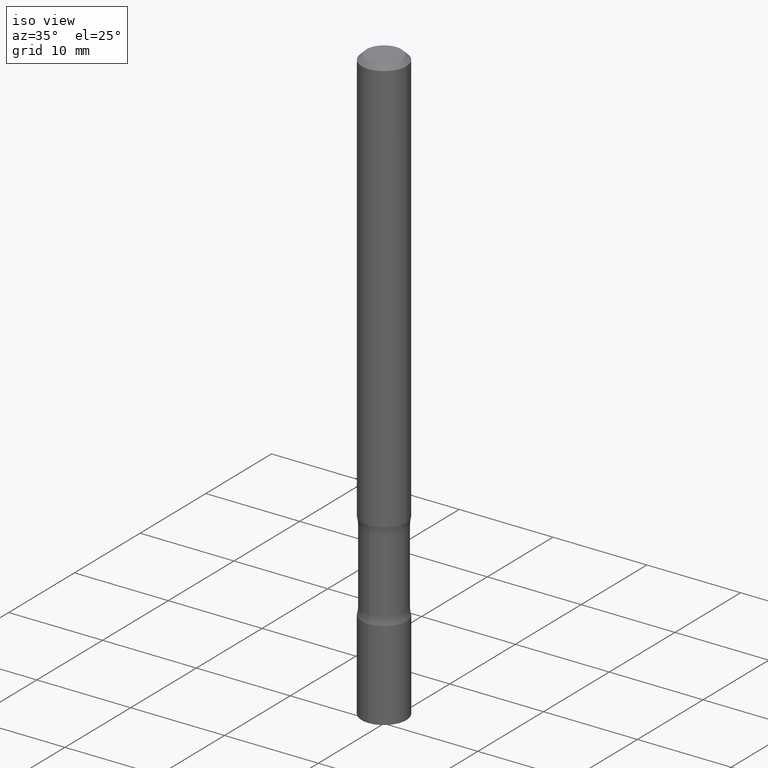
[diagram: clean part render]
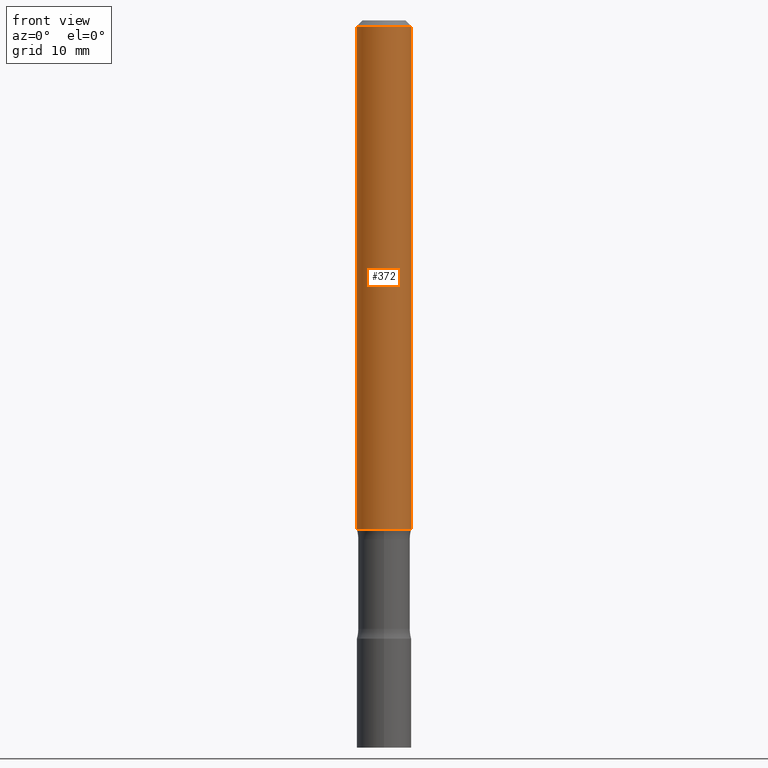
[diagram: tour spotlight — one face highlighted and labeled with its STEP entity id]
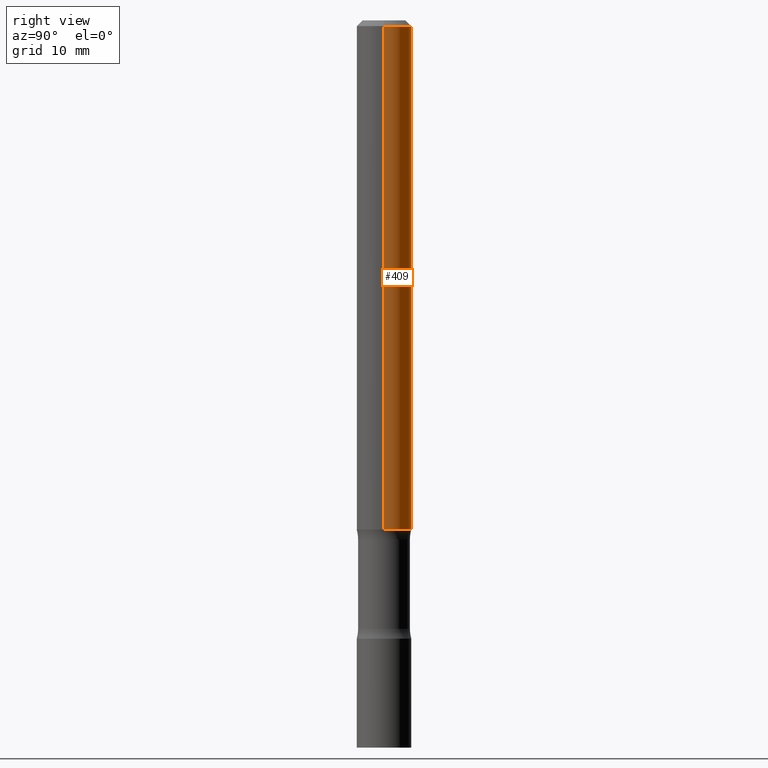
[diagram: tour spotlight — one face highlighted and labeled with its STEP entity id]
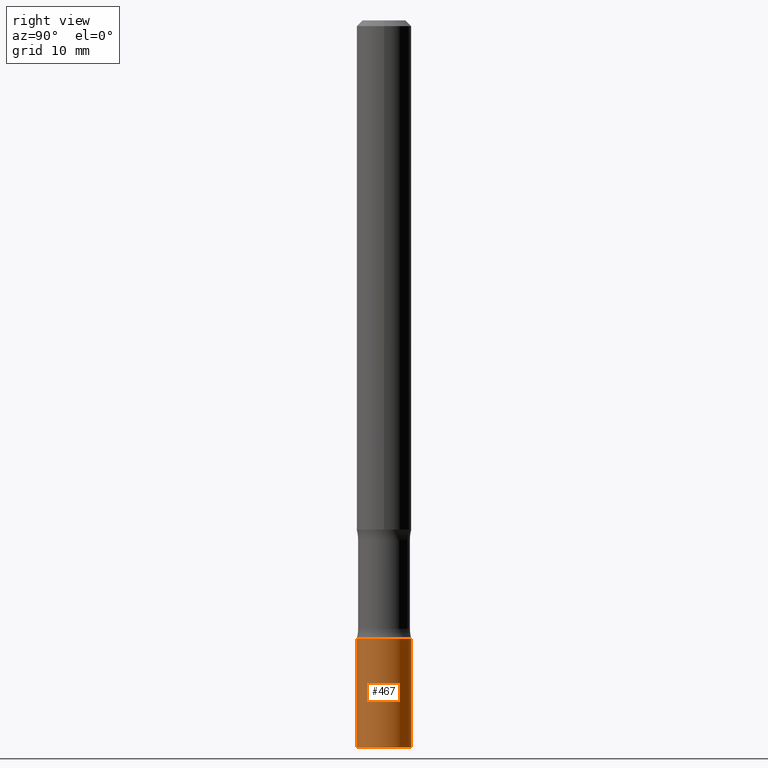
[diagram: tour spotlight — one face highlighted and labeled with its STEP entity id]
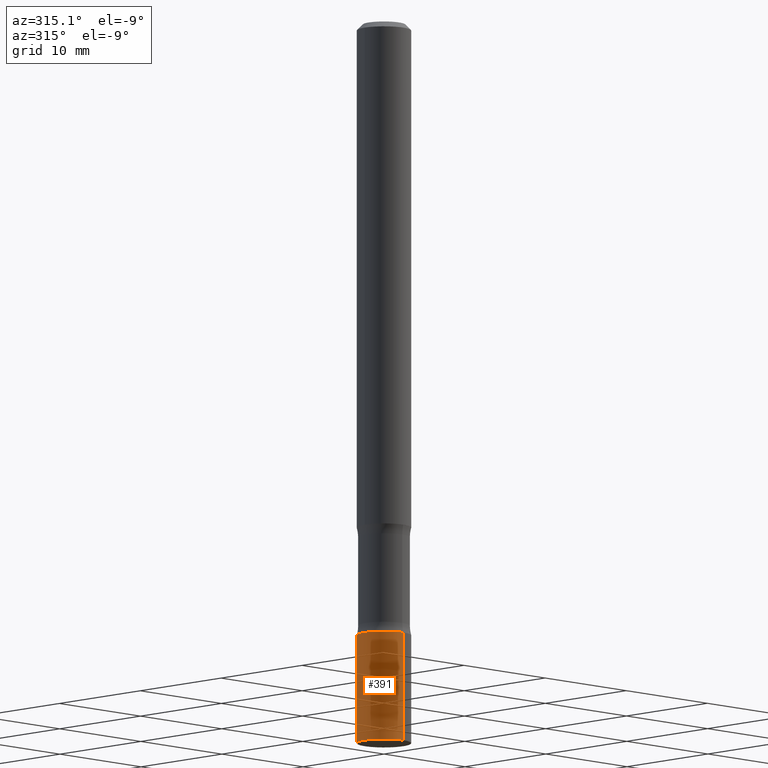
[diagram: tour spotlight — one face highlighted and labeled with its STEP entity id]
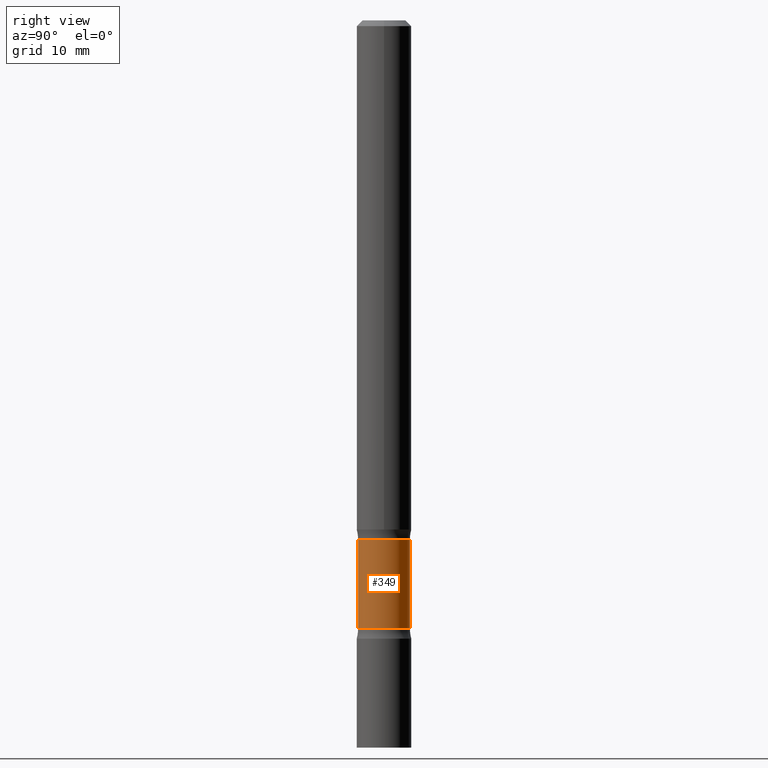
[diagram: tour spotlight — one face highlighted and labeled with its STEP entity id]
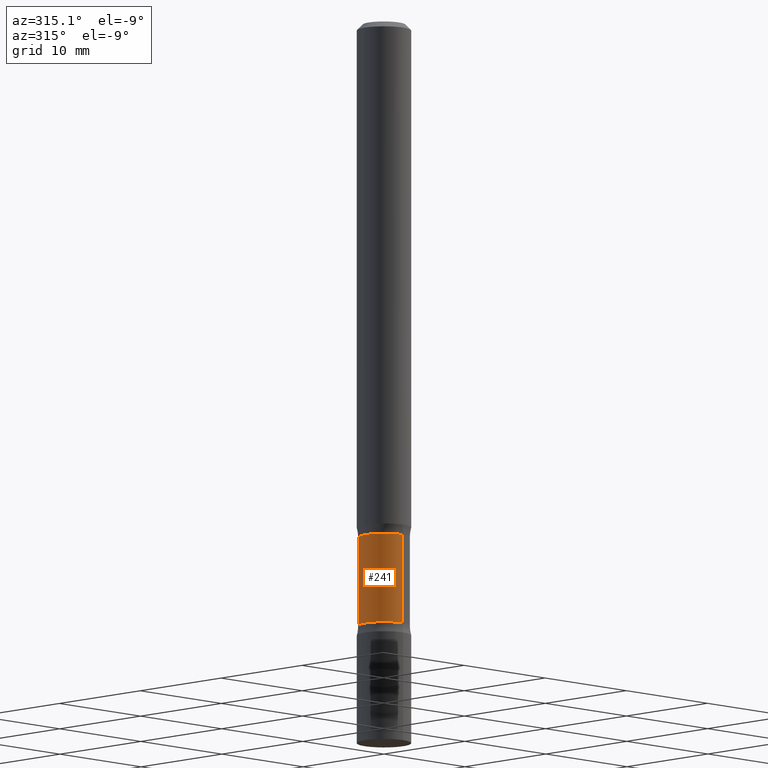
[diagram: tour spotlight — one face highlighted and labeled with its STEP entity id]
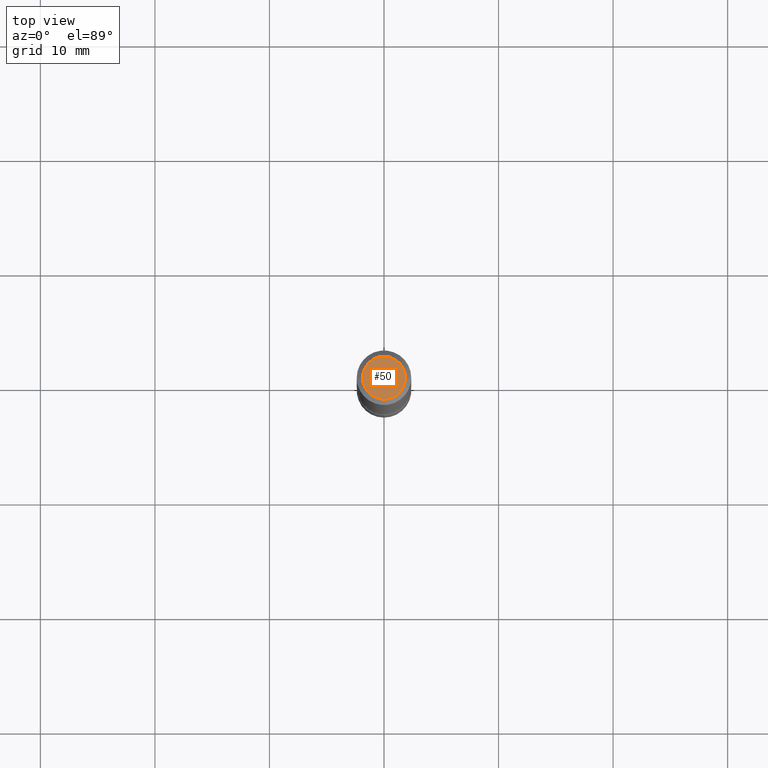
[diagram: tour spotlight — one face highlighted and labeled with its STEP entity id]
A machine part: a face-by-face anatomy tour. The part has 18 B-rep faces; the first image is the clean iso view, then the 7 largest visible faces are spotlighted one at a time (largest first), each with its STEP entity span.

Face 1 — front view, entity #372. In plain terms, the highlighted cylindrical surface (edge-blend (fillet) strip) has radius 2.3812 mm, axis along (-0, 0, 1).
Definition (entity closure, byte-faithful):
#12 = VERTEX_POINT ( 'NONE', #350 ) ;
#14 = AXIS2_PLACEMENT_3D ( 'NONE', #357, #317, #170 ) ;
#22 = CIRCLE ( 'NONE', #334, 0.09375000000000001388 ) ;
#25 = ORIENTED_EDGE ( 'NONE', *, *, #125, .F. ) ;
#30 = VERTEX_POINT ( 'NONE', #498 ) ;
#34 = DIRECTION ( 'NONE',  ( 1.000000000000000000, -6.982962677686261189E-15, 0.000000000000000000 ) ) ;
#48 = AXIS2_PLACEMENT_3D ( 'NONE', #128, #421, #66 ) ;
#66 = DIRECTION ( 'NONE',  ( 1.000000000000000000, -6.982962677686266711E-15, 0.000000000000000000 ) ) ;
#69 = VERTEX_POINT ( 'NONE', #406 ) ;
#90 = EDGE_CURVE ( 'NONE', #343, #30, #225, .T. ) ;
#100 = CIRCLE ( 'NONE', #48, 0.09374999999999979183 ) ;
#112 = CARTESIAN_POINT ( 'NONE',  ( 4.279570410823988484E-29, -6.110092342975504671E-15, -1.750000000000000000 ) ) ;
#114 = DIRECTION ( 'NONE',  ( -2.445468806185136597E-29, 3.491481338843145583E-15, 1.000000000000000000 ) ) ;
#121 = ORIENTED_EDGE ( 'NONE', *, *, #90, .F. ) ;
#123 = EDGE_LOOP ( 'NONE', ( #121, #459, #268, #25 ) ) ;
#125 = EDGE_CURVE ( 'NONE', #30, #12, #100, .T. ) ;
#128 = CARTESIAN_POINT ( 'NONE',  ( 4.890937612370273159E-31, -6.982962677686291609E-17, -0.02000000000000000042 ) ) ;
#143 = EDGE_CURVE ( 'NONE', #343, #69, #22, .T. ) ;
#144 = CARTESIAN_POINT ( 'NONE',  ( 0.09374999999999988898, -6.546527510330866166E-16, 4.571415727308684201E-30 ) ) ;
#170 = DIRECTION ( 'NONE',  ( 1.000000000000000000, -6.982962677686265133E-15, 4.876176775795935793E-29 ) ) ;
#178 = LINE ( 'NONE', #144, #436 ) ;
#193 = DIRECTION ( 'NONE',  ( -2.445468806185136877E-29, 3.491481338843145188E-15, 1.000000000000000000 ) ) ;
#212 = VECTOR ( 'NONE', #193, 39.37007874015748143 ) ;
#225 = LINE ( 'NONE', #493, #212 ) ;
#233 = CYLINDRICAL_SURFACE ( 'NONE', #14, 0.09374999999999988898 ) ;
#242 = CARTESIAN_POINT ( 'NONE',  ( -0.09375000000000001388, -2.423827170101085722E-15, -1.750000000000000000 ) ) ;
#268 = ORIENTED_EDGE ( 'NONE', *, *, #341, .T. ) ;
#285 = FACE_OUTER_BOUND ( 'NONE', #123, .T. ) ;
#317 = DIRECTION ( 'NONE',  ( -2.445468806185136597E-29, 3.491481338843145583E-15, 1.000000000000000000 ) ) ;
#334 = AXIS2_PLACEMENT_3D ( 'NONE', #112, #114, #34 ) ;
#341 = EDGE_CURVE ( 'NONE', #69, #12, #178, .T. ) ;
#343 = VERTEX_POINT ( 'NONE', #242 ) ;
#350 = CARTESIAN_POINT ( 'NONE',  ( 0.09374999999999979183, -7.130013140679426072E-16, -0.02000000000000000042 ) ) ;
#357 = CARTESIAN_POINT ( 'NONE',  ( 0.000000000000000000, 0.000000000000000000, 0.000000000000000000 ) ) ;
#372 = ADVANCED_FACE ( 'NONE', ( #285 ), #233, .T. ) ;
#406 = CARTESIAN_POINT ( 'NONE',  ( 0.09375000000000001388, -6.764745094008591386E-15, -1.750000000000000000 ) ) ;
#421 = DIRECTION ( 'NONE',  ( -2.445468806185136597E-29, 3.491481338843145583E-15, 1.000000000000000000 ) ) ;
#436 = VECTOR ( 'NONE', #477, 39.37007874015748143 ) ;
#459 = ORIENTED_EDGE ( 'NONE', *, *, #143, .T. ) ;
#477 = DIRECTION ( 'NONE',  ( -2.445468806185136877E-29, 3.491481338843145188E-15, 1.000000000000000000 ) ) ;
#493 = CARTESIAN_POINT ( 'NONE',  ( -0.09374999999999988898, 6.661338147750931354E-16, -4.611501647113968390E-30 ) ) ;
#498 = CARTESIAN_POINT ( 'NONE',  ( -0.09374999999999979183, 5.848231242562231212E-16, -0.02000000000000000042 ) ) ;

Face 2 — right view, entity #409. In plain terms, the highlighted cylindrical surface (edge-blend (fillet) strip) has radius 2.3812 mm, axis along (-0, 0, 1).
Definition (entity closure, byte-faithful):
#12 = VERTEX_POINT ( 'NONE', #350 ) ;
#26 = ORIENTED_EDGE ( 'NONE', *, *, #286, .T. ) ;
#30 = VERTEX_POINT ( 'NONE', #498 ) ;
#47 = CARTESIAN_POINT ( 'NONE',  ( 0.000000000000000000, 0.000000000000000000, 0.000000000000000000 ) ) ;
#61 = AXIS2_PLACEMENT_3D ( 'NONE', #47, #213, #129 ) ;
#69 = VERTEX_POINT ( 'NONE', #406 ) ;
#86 = CIRCLE ( 'NONE', #181, 0.09375000000000001388 ) ;
#90 = EDGE_CURVE ( 'NONE', #343, #30, #225, .T. ) ;
#127 = EDGE_LOOP ( 'NONE', ( #26, #224, #166, #261 ) ) ;
#129 = DIRECTION ( 'NONE',  ( 1.000000000000000000, -6.982962677686265133E-15, 4.876176775795935793E-29 ) ) ;
#136 = EDGE_CURVE ( 'NONE', #12, #30, #379, .T. ) ;
#144 = CARTESIAN_POINT ( 'NONE',  ( 0.09374999999999988898, -6.546527510330866166E-16, 4.571415727308684201E-30 ) ) ;
#161 = CARTESIAN_POINT ( 'NONE',  ( 4.890937612370273159E-31, -6.982962677686291609E-17, -0.02000000000000000042 ) ) ;
#166 = ORIENTED_EDGE ( 'NONE', *, *, #136, .F. ) ;
#178 = LINE ( 'NONE', #144, #436 ) ;
#181 = AXIS2_PLACEMENT_3D ( 'NONE', #215, #289, #365 ) ;
#193 = DIRECTION ( 'NONE',  ( -2.445468806185136877E-29, 3.491481338843145188E-15, 1.000000000000000000 ) ) ;
#212 = VECTOR ( 'NONE', #193, 39.37007874015748143 ) ;
#213 = DIRECTION ( 'NONE',  ( -2.445468806185136597E-29, 3.491481338843145583E-15, 1.000000000000000000 ) ) ;
#215 = CARTESIAN_POINT ( 'NONE',  ( 4.279570410823988484E-29, -6.110092342975504671E-15, -1.750000000000000000 ) ) ;
#224 = ORIENTED_EDGE ( 'NONE', *, *, #90, .T. ) ;
#225 = LINE ( 'NONE', #493, #212 ) ;
#242 = CARTESIAN_POINT ( 'NONE',  ( -0.09375000000000001388, -2.423827170101085722E-15, -1.750000000000000000 ) ) ;
#247 = FACE_OUTER_BOUND ( 'NONE', #127, .T. ) ;
#261 = ORIENTED_EDGE ( 'NONE', *, *, #341, .F. ) ;
#286 = EDGE_CURVE ( 'NONE', #69, #343, #86, .T. ) ;
#289 = DIRECTION ( 'NONE',  ( -2.445468806185136597E-29, 3.491481338843145583E-15, 1.000000000000000000 ) ) ;
#341 = EDGE_CURVE ( 'NONE', #69, #12, #178, .T. ) ;
#343 = VERTEX_POINT ( 'NONE', #242 ) ;
#344 = DIRECTION ( 'NONE',  ( -2.445468806185136597E-29, 3.491481338843145583E-15, 1.000000000000000000 ) ) ;
#350 = CARTESIAN_POINT ( 'NONE',  ( 0.09374999999999979183, -7.130013140679426072E-16, -0.02000000000000000042 ) ) ;
#365 = DIRECTION ( 'NONE',  ( 1.000000000000000000, -6.982962677686261189E-15, 0.000000000000000000 ) ) ;
#379 = CIRCLE ( 'NONE', #507, 0.09374999999999979183 ) ;
#389 = DIRECTION ( 'NONE',  ( 1.000000000000000000, -6.982962677686266711E-15, 0.000000000000000000 ) ) ;
#396 = CYLINDRICAL_SURFACE ( 'NONE', #61, 0.09374999999999988898 ) ;
#406 = CARTESIAN_POINT ( 'NONE',  ( 0.09375000000000001388, -6.764745094008591386E-15, -1.750000000000000000 ) ) ;
#409 = ADVANCED_FACE ( 'NONE', ( #247 ), #396, .T. ) ;
#436 = VECTOR ( 'NONE', #477, 39.37007874015748143 ) ;
#477 = DIRECTION ( 'NONE',  ( -2.445468806185136877E-29, 3.491481338843145188E-15, 1.000000000000000000 ) ) ;
#493 = CARTESIAN_POINT ( 'NONE',  ( -0.09374999999999988898, 6.661338147750931354E-16, -4.611501647113968390E-30 ) ) ;
#498 = CARTESIAN_POINT ( 'NONE',  ( -0.09374999999999979183, 5.848231242562231212E-16, -0.02000000000000000042 ) ) ;
#507 = AXIS2_PLACEMENT_3D ( 'NONE', #161, #344, #389 ) ;

Face 3 — right view, entity #467. In plain terms, the highlighted cylindrical surface (edge-blend (fillet) strip) has radius 2.3813 mm, axis along (-0, 0, 1).
Definition (entity closure, byte-faithful):
#11 = CARTESIAN_POINT ( 'NONE',  ( -6.546527510330356365E-16, -0.09375000000000743849, -2.125000000000000000 ) ) ;
#32 = DIRECTION ( 'NONE',  ( -6.982962677686265922E-15, -1.000000000000000000, 2.913971193241880372E-15 ) ) ;
#40 = EDGE_LOOP ( 'NONE', ( #301, #191, #342, #369 ) ) ;
#60 = CARTESIAN_POINT ( 'NONE',  ( 0.000000000000000000, 0.000000000000000000, 0.000000000000000000 ) ) ;
#64 = DIRECTION ( 'NONE',  ( -2.445335353247201709E-29, 3.491672451045937805E-15, 1.000000000000000000 ) ) ;
#74 = VERTEX_POINT ( 'NONE', #484 ) ;
#82 = AXIS2_PLACEMENT_3D ( 'NONE', #60, #64, #376 ) ;
#89 = CARTESIAN_POINT ( 'NONE',  ( 5.196337625650303527E-29, -7.419803958472619019E-15, -2.125000000000000000 ) ) ;
#107 = EDGE_CURVE ( 'NONE', #159, #74, #271, .T. ) ;
#154 = EDGE_CURVE ( 'NONE', #159, #428, #231, .T. ) ;
#155 = CARTESIAN_POINT ( 'NONE',  ( -6.546527510330875041E-16, -0.09375000000000001388, 3.273442922855567185E-16 ) ) ;
#158 = CARTESIAN_POINT ( 'NONE',  ( 6.113338383118004413E-29, -8.729181127614846091E-15, -2.500000000000000000 ) ) ;
#159 = VERTEX_POINT ( 'NONE', #237 ) ;
#191 = ORIENTED_EDGE ( 'NONE', *, *, #205, .T. ) ;
#205 = EDGE_CURVE ( 'NONE', #74, #230, #206, .T. ) ;
#206 = LINE ( 'NONE', #232, #292 ) ;
#230 = VERTEX_POINT ( 'NONE', #473 ) ;
#231 = LINE ( 'NONE', #155, #360 ) ;
#232 = CARTESIAN_POINT ( 'NONE',  ( 6.661338147750938256E-16, 0.09375000000000001388, -3.273442922855567185E-16 ) ) ;
#237 = CARTESIAN_POINT ( 'NONE',  ( -6.546527510330263674E-16, -0.09375000000000872913, -2.499999999999999556 ) ) ;
#255 = AXIS2_PLACEMENT_3D ( 'NONE', #158, #429, #303 ) ;
#264 = FACE_OUTER_BOUND ( 'NONE', #40, .T. ) ;
#271 = CIRCLE ( 'NONE', #255, 0.09375000000000001388 ) ;
#292 = VECTOR ( 'NONE', #313, 39.37007874015748143 ) ;
#301 = ORIENTED_EDGE ( 'NONE', *, *, #107, .T. ) ;
#303 = DIRECTION ( 'NONE',  ( -6.982962677686265922E-15, -1.000000000000000000, 5.827942386483760744E-15 ) ) ;
#313 = DIRECTION ( 'NONE',  ( -2.445335353247201709E-29, 3.491672451045938200E-15, 1.000000000000000000 ) ) ;
#342 = ORIENTED_EDGE ( 'NONE', *, *, #394, .F. ) ;
#354 = DIRECTION ( 'NONE',  ( -2.445335353247201709E-29, 3.491672451045937805E-15, 1.000000000000000000 ) ) ;
#360 = VECTOR ( 'NONE', #462, 39.37007874015748143 ) ;
#369 = ORIENTED_EDGE ( 'NONE', *, *, #154, .F. ) ;
#376 = DIRECTION ( 'NONE',  ( -6.982962677686265922E-15, -1.000000000000000000, 3.491672451045937805E-15 ) ) ;
#394 = EDGE_CURVE ( 'NONE', #428, #230, #497, .T. ) ;
#416 = CYLINDRICAL_SURFACE ( 'NONE', #82, 0.09375000000000001388 ) ;
#428 = VERTEX_POINT ( 'NONE', #11 ) ;
#429 = DIRECTION ( 'NONE',  ( -2.445335353247201709E-29, 3.491672451045937805E-15, 1.000000000000000000 ) ) ;
#462 = DIRECTION ( 'NONE',  ( -2.445335353247201709E-29, 3.491672451045938200E-15, 1.000000000000000000 ) ) ;
#467 = ADVANCED_FACE ( 'NONE', ( #264 ), #416, .T. ) ;
#473 = CARTESIAN_POINT ( 'NONE',  ( 6.661338147751549624E-16, 0.09374999999999257538, -2.125000000000000444 ) ) ;
#478 = AXIS2_PLACEMENT_3D ( 'NONE', #89, #354, #32 ) ;
#484 = CARTESIAN_POINT ( 'NONE',  ( 6.661338147751504264E-16, 0.09374999999999128475, -2.500000000000000444 ) ) ;
#497 = CIRCLE ( 'NONE', #478, 0.09375000000000001388 ) ;

Face 4 — auxiliary view, entity #391. In plain terms, the highlighted cylindrical surface (edge-blend (fillet) strip) has radius 2.3813 mm, axis along (-0, 0, 1).
Definition (entity closure, byte-faithful):
#11 = CARTESIAN_POINT ( 'NONE',  ( -6.546527510330356365E-16, -0.09375000000000743849, -2.125000000000000000 ) ) ;
#42 = DIRECTION ( 'NONE',  ( -2.445335353247201709E-29, 3.491672451045937805E-15, 1.000000000000000000 ) ) ;
#46 = AXIS2_PLACEMENT_3D ( 'NONE', #302, #337, #149 ) ;
#58 = AXIS2_PLACEMENT_3D ( 'NONE', #207, #42, #175 ) ;
#74 = VERTEX_POINT ( 'NONE', #484 ) ;
#135 = FACE_OUTER_BOUND ( 'NONE', #384, .T. ) ;
#137 = CYLINDRICAL_SURFACE ( 'NONE', #165, 0.09375000000000001388 ) ;
#149 = DIRECTION ( 'NONE',  ( -6.982962677686265922E-15, -1.000000000000000000, 2.913971193241880372E-15 ) ) ;
#154 = EDGE_CURVE ( 'NONE', #159, #428, #231, .T. ) ;
#155 = CARTESIAN_POINT ( 'NONE',  ( -6.546527510330875041E-16, -0.09375000000000001388, 3.273442922855567185E-16 ) ) ;
#159 = VERTEX_POINT ( 'NONE', #237 ) ;
#165 = AXIS2_PLACEMENT_3D ( 'NONE', #386, #284, #439 ) ;
#175 = DIRECTION ( 'NONE',  ( -6.982962677686265922E-15, -1.000000000000000000, 5.827942386483760744E-15 ) ) ;
#205 = EDGE_CURVE ( 'NONE', #74, #230, #206, .T. ) ;
#206 = LINE ( 'NONE', #232, #292 ) ;
#207 = CARTESIAN_POINT ( 'NONE',  ( 6.113338383118004413E-29, -8.729181127614846091E-15, -2.500000000000000000 ) ) ;
#230 = VERTEX_POINT ( 'NONE', #473 ) ;
#231 = LINE ( 'NONE', #155, #360 ) ;
#232 = CARTESIAN_POINT ( 'NONE',  ( 6.661338147750938256E-16, 0.09375000000000001388, -3.273442922855567185E-16 ) ) ;
#237 = CARTESIAN_POINT ( 'NONE',  ( -6.546527510330263674E-16, -0.09375000000000872913, -2.499999999999999556 ) ) ;
#262 = CIRCLE ( 'NONE', #46, 0.09375000000000001388 ) ;
#284 = DIRECTION ( 'NONE',  ( -2.445335353247201709E-29, 3.491672451045937805E-15, 1.000000000000000000 ) ) ;
#292 = VECTOR ( 'NONE', #313, 39.37007874015748143 ) ;
#302 = CARTESIAN_POINT ( 'NONE',  ( 5.196337625650303527E-29, -7.419803958472619019E-15, -2.125000000000000000 ) ) ;
#313 = DIRECTION ( 'NONE',  ( -2.445335353247201709E-29, 3.491672451045938200E-15, 1.000000000000000000 ) ) ;
#336 = ORIENTED_EDGE ( 'NONE', *, *, #205, .F. ) ;
#337 = DIRECTION ( 'NONE',  ( -2.445335353247201709E-29, 3.491672451045937805E-15, 1.000000000000000000 ) ) ;
#360 = VECTOR ( 'NONE', #462, 39.37007874015748143 ) ;
#364 = EDGE_CURVE ( 'NONE', #74, #159, #377, .T. ) ;
#377 = CIRCLE ( 'NONE', #58, 0.09375000000000001388 ) ;
#381 = ORIENTED_EDGE ( 'NONE', *, *, #364, .T. ) ;
#384 = EDGE_LOOP ( 'NONE', ( #336, #381, #487, #495 ) ) ;
#386 = CARTESIAN_POINT ( 'NONE',  ( 0.000000000000000000, 0.000000000000000000, 0.000000000000000000 ) ) ;
#391 = ADVANCED_FACE ( 'NONE', ( #135 ), #137, .T. ) ;
#428 = VERTEX_POINT ( 'NONE', #11 ) ;
#439 = DIRECTION ( 'NONE',  ( -6.982962677686265922E-15, -1.000000000000000000, 3.491672451045937805E-15 ) ) ;
#445 = EDGE_CURVE ( 'NONE', #230, #428, #262, .T. ) ;
#462 = DIRECTION ( 'NONE',  ( -2.445335353247201709E-29, 3.491672451045938200E-15, 1.000000000000000000 ) ) ;
#473 = CARTESIAN_POINT ( 'NONE',  ( 6.661338147751549624E-16, 0.09374999999999257538, -2.125000000000000444 ) ) ;
#484 = CARTESIAN_POINT ( 'NONE',  ( 6.661338147751504264E-16, 0.09374999999999128475, -2.500000000000000444 ) ) ;
#487 = ORIENTED_EDGE ( 'NONE', *, *, #154, .T. ) ;
#495 = ORIENTED_EDGE ( 'NONE', *, *, #445, .F. ) ;

Face 5 — right view, entity #349. In plain terms, the highlighted cylindrical surface (edge-blend (fillet) strip) has radius 2.2622 mm, axis along (0, -0, -1).
Definition (entity closure, byte-faithful):
#10 = CARTESIAN_POINT ( 'NONE',  ( 5.108949665098794430E-29, -7.307796357737152502E-15, -2.091089789977795821 ) ) ;
#20 = ORIENTED_EDGE ( 'NONE', *, *, #483, .T. ) ;
#35 = DIRECTION ( 'NONE',  ( 2.577039791092079409E-29, -3.303064199901000429E-15, -1.000000000000000000 ) ) ;
#39 = FACE_OUTER_BOUND ( 'NONE', #299, .T. ) ;
#103 = VERTEX_POINT ( 'NONE', #202 ) ;
#109 = ORIENTED_EDGE ( 'NONE', *, *, #222, .T. ) ;
#116 = CARTESIAN_POINT ( 'NONE',  ( 6.219201134814764177E-16, 0.08906249999999373002, -1.783910210022204623 ) ) ;
#120 = VECTOR ( 'NONE', #279, 39.37007874015748143 ) ;
#132 = CIRCLE ( 'NONE', #288, 0.08906250000000003053 ) ;
#167 = CARTESIAN_POINT ( 'NONE',  ( 4.317335664542283686E-29, -6.293162484245211017E-15, -1.783910210022204401 ) ) ;
#177 = EDGE_CURVE ( 'NONE', #200, #103, #465, .T. ) ;
#188 = DIRECTION ( 'NONE',  ( 6.982962677686265133E-15, 1.000000000000000000, -3.067338098149345144E-15 ) ) ;
#194 = VERTEX_POINT ( 'NONE', #432 ) ;
#197 = CARTESIAN_POINT ( 'NONE',  ( 6.219201134814949559E-16, 0.08906249999999139855, -2.500000000000000444 ) ) ;
#200 = VERTEX_POINT ( 'NONE', #116 ) ;
#202 = CARTESIAN_POINT ( 'NONE',  ( 6.219201134814847007E-16, 0.08906249999999277245, -2.091089789977796265 ) ) ;
#219 = VECTOR ( 'NONE', #496, 39.37007874015748143 ) ;
#222 = EDGE_CURVE ( 'NONE', #194, #229, #273, .T. ) ;
#229 = VERTEX_POINT ( 'NONE', #385 ) ;
#238 = CYLINDRICAL_SURFACE ( 'NONE', #455, 0.08906250000000004441 ) ;
#245 = ORIENTED_EDGE ( 'NONE', *, *, #177, .F. ) ;
#253 = DIRECTION ( 'NONE',  ( 2.577039791092079409E-29, -3.303064199901000429E-15, -1.000000000000000000 ) ) ;
#273 = LINE ( 'NONE', #424, #120 ) ;
#277 = CARTESIAN_POINT ( 'NONE',  ( 6.162727547309833585E-29, -8.658453033435494328E-15, -2.500000000000000000 ) ) ;
#279 = DIRECTION ( 'NONE',  ( 2.577039791092079409E-29, -3.303064199901000035E-15, -1.000000000000000000 ) ) ;
#288 = AXIS2_PLACEMENT_3D ( 'NONE', #167, #474, #356 ) ;
#295 = EDGE_CURVE ( 'NONE', #103, #229, #470, .T. ) ;
#299 = EDGE_LOOP ( 'NONE', ( #20, #109, #418, #245 ) ) ;
#331 = AXIS2_PLACEMENT_3D ( 'NONE', #10, #253, #188 ) ;
#349 = ADVANCED_FACE ( 'NONE', ( #39 ), #238, .T. ) ;
#356 = DIRECTION ( 'NONE',  ( 6.982962677686265133E-15, 1.000000000000000000, -3.067338098149347116E-15 ) ) ;
#362 = DIRECTION ( 'NONE',  ( 6.982962677686265133E-15, 1.000000000000000000, -6.134676196298693444E-15 ) ) ;
#385 = CARTESIAN_POINT ( 'NONE',  ( -6.270923951087528204E-16, -0.08906250000000738576, -2.091089789977795821 ) ) ;
#418 = ORIENTED_EDGE ( 'NONE', *, *, #295, .F. ) ;
#424 = CARTESIAN_POINT ( 'NONE',  ( -6.110131029264656761E-16, -0.08906250000000870415, -2.499999999999999556 ) ) ;
#432 = CARTESIAN_POINT ( 'NONE',  ( -6.270923951087616950E-16, -0.08906250000000633105, -1.783910210022204179 ) ) ;
#455 = AXIS2_PLACEMENT_3D ( 'NONE', #277, #35, #362 ) ;
#465 = LINE ( 'NONE', #197, #219 ) ;
#470 = CIRCLE ( 'NONE', #331, 0.08906250000000008604 ) ;
#474 = DIRECTION ( 'NONE',  ( 2.577039791092079409E-29, -3.303064199901000429E-15, -1.000000000000000000 ) ) ;
#483 = EDGE_CURVE ( 'NONE', #200, #194, #132, .T. ) ;
#496 = DIRECTION ( 'NONE',  ( 2.577039791092079409E-29, -3.303064199901000035E-15, -1.000000000000000000 ) ) ;

Face 6 — auxiliary view, entity #241. In plain terms, the highlighted cylindrical surface (edge-blend (fillet) strip) has radius 2.2622 mm, axis along (0, -0, -1).
Definition (entity closure, byte-faithful):
#8 = EDGE_LOOP ( 'NONE', ( #505, #57, #426, #196 ) ) ;
#21 = FACE_OUTER_BOUND ( 'NONE', #8, .T. ) ;
#57 = ORIENTED_EDGE ( 'NONE', *, *, #274, .T. ) ;
#72 = AXIS2_PLACEMENT_3D ( 'NONE', #160, #296, #485 ) ;
#103 = VERTEX_POINT ( 'NONE', #202 ) ;
#116 = CARTESIAN_POINT ( 'NONE',  ( 6.219201134814764177E-16, 0.08906249999999373002, -1.783910210022204623 ) ) ;
#120 = VECTOR ( 'NONE', #279, 39.37007874015748143 ) ;
#148 = CIRCLE ( 'NONE', #425, 0.08906250000000003053 ) ;
#160 = CARTESIAN_POINT ( 'NONE',  ( 5.108949665098794430E-29, -7.307796357737152502E-15, -2.091089789977795821 ) ) ;
#177 = EDGE_CURVE ( 'NONE', #200, #103, #465, .T. ) ;
#180 = CARTESIAN_POINT ( 'NONE',  ( 4.317335664542283686E-29, -6.293162484245211017E-15, -1.783910210022204401 ) ) ;
#194 = VERTEX_POINT ( 'NONE', #432 ) ;
#196 = ORIENTED_EDGE ( 'NONE', *, *, #452, .F. ) ;
#197 = CARTESIAN_POINT ( 'NONE',  ( 6.219201134814949559E-16, 0.08906249999999139855, -2.500000000000000444 ) ) ;
#200 = VERTEX_POINT ( 'NONE', #116 ) ;
#202 = CARTESIAN_POINT ( 'NONE',  ( 6.219201134814847007E-16, 0.08906249999999277245, -2.091089789977796265 ) ) ;
#211 = CIRCLE ( 'NONE', #72, 0.08906250000000008604 ) ;
#219 = VECTOR ( 'NONE', #496, 39.37007874015748143 ) ;
#222 = EDGE_CURVE ( 'NONE', #194, #229, #273, .T. ) ;
#229 = VERTEX_POINT ( 'NONE', #385 ) ;
#241 = ADVANCED_FACE ( 'NONE', ( #21 ), #491, .T. ) ;
#246 = CARTESIAN_POINT ( 'NONE',  ( 6.162727547309833585E-29, -8.658453033435494328E-15, -2.500000000000000000 ) ) ;
#257 = DIRECTION ( 'NONE',  ( 2.577039791092079409E-29, -3.303064199901000429E-15, -1.000000000000000000 ) ) ;
#273 = LINE ( 'NONE', #424, #120 ) ;
#274 = EDGE_CURVE ( 'NONE', #194, #200, #148, .T. ) ;
#275 = DIRECTION ( 'NONE',  ( 2.577039791092079409E-29, -3.303064199901000429E-15, -1.000000000000000000 ) ) ;
#279 = DIRECTION ( 'NONE',  ( 2.577039791092079409E-29, -3.303064199901000035E-15, -1.000000000000000000 ) ) ;
#290 = DIRECTION ( 'NONE',  ( 6.982962677686265133E-15, 1.000000000000000000, -3.067338098149347116E-15 ) ) ;
#296 = DIRECTION ( 'NONE',  ( 2.577039791092079409E-29, -3.303064199901000429E-15, -1.000000000000000000 ) ) ;
#359 = AXIS2_PLACEMENT_3D ( 'NONE', #246, #275, #431 ) ;
#385 = CARTESIAN_POINT ( 'NONE',  ( -6.270923951087528204E-16, -0.08906250000000738576, -2.091089789977795821 ) ) ;
#424 = CARTESIAN_POINT ( 'NONE',  ( -6.110131029264656761E-16, -0.08906250000000870415, -2.499999999999999556 ) ) ;
#425 = AXIS2_PLACEMENT_3D ( 'NONE', #180, #257, #290 ) ;
#426 = ORIENTED_EDGE ( 'NONE', *, *, #177, .T. ) ;
#431 = DIRECTION ( 'NONE',  ( 6.982962677686265133E-15, 1.000000000000000000, -6.134676196298693444E-15 ) ) ;
#432 = CARTESIAN_POINT ( 'NONE',  ( -6.270923951087616950E-16, -0.08906250000000633105, -1.783910210022204179 ) ) ;
#452 = EDGE_CURVE ( 'NONE', #229, #103, #211, .T. ) ;
#465 = LINE ( 'NONE', #197, #219 ) ;
#485 = DIRECTION ( 'NONE',  ( 6.982962677686265133E-15, 1.000000000000000000, -3.067338098149345144E-15 ) ) ;
#491 = CYLINDRICAL_SURFACE ( 'NONE', #359, 0.08906250000000004441 ) ;
#496 = DIRECTION ( 'NONE',  ( 2.577039791092079409E-29, -3.303064199901000035E-15, -1.000000000000000000 ) ) ;
#505 = ORIENTED_EDGE ( 'NONE', *, *, #222, .F. ) ;

Face 7 — top view, entity #50. In plain terms, the highlighted planar face has unit normal (0, -0, -1).
Definition (entity closure, byte-faithful):
#37 = CARTESIAN_POINT ( 'NONE',  ( 0.000000000000000000, 0.000000000000000000, 0.000000000000000000 ) ) ;
#44 = DIRECTION ( 'NONE',  ( -1.000000000000000000, 6.982962677686265922E-15, -4.876176775795935793E-29 ) ) ;
#50 = ADVANCED_FACE ( 'NONE', ( #126 ), #88, .F. ) ;
#62 = EDGE_LOOP ( 'NONE', ( #420, #265 ) ) ;
#88 = PLANE ( 'NONE',  #422 ) ;
#91 = CARTESIAN_POINT ( 'NONE',  ( 0.000000000000000000, 0.000000000000000000, 0.000000000000000000 ) ) ;
#126 = FACE_OUTER_BOUND ( 'NONE', #62, .T. ) ;
#186 = CARTESIAN_POINT ( 'NONE',  ( 0.07374999999999982958, -6.094815207017959226E-16, 3.931526600461596647E-30 ) ) ;
#208 = DIRECTION ( 'NONE',  ( -2.445468806185136597E-29, 3.491481338843145583E-15, 1.000000000000000000 ) ) ;
#216 = CIRCLE ( 'NONE', #398, 0.07374999999999982958 ) ;
#221 = CARTESIAN_POINT ( 'NONE',  ( -0.07374999999999982958, 5.499083108677920638E-16, -3.723527850031185562E-30 ) ) ;
#235 = CARTESIAN_POINT ( 'NONE',  ( 5.149934974793609077E-16, 0.07374999999999982958, -2.574967487396813906E-16 ) ) ;
#239 = AXIS2_PLACEMENT_3D ( 'NONE', #91, #366, #402 ) ;
#265 = ORIENTED_EDGE ( 'NONE', *, *, #412, .T. ) ;
#269 = VERTEX_POINT ( 'NONE', #221 ) ;
#283 = DIRECTION ( 'NONE',  ( 1.000000000000000000, -6.982962677686266711E-15, 4.876176775795935793E-29 ) ) ;
#366 = DIRECTION ( 'NONE',  ( -2.445468806185136597E-29, 3.491481338843145583E-15, 1.000000000000000000 ) ) ;
#395 = DIRECTION ( 'NONE',  ( 2.438088387897960049E-29, -3.491481338843145188E-15, -1.000000000000000000 ) ) ;
#398 = AXIS2_PLACEMENT_3D ( 'NONE', #37, #208, #283 ) ;
#402 = DIRECTION ( 'NONE',  ( 1.000000000000000000, -6.982962677686266711E-15, 4.876176775795935793E-29 ) ) ;
#403 = CIRCLE ( 'NONE', #239, 0.07374999999999982958 ) ;
#412 = EDGE_CURVE ( 'NONE', #437, #269, #403, .T. ) ;
#420 = ORIENTED_EDGE ( 'NONE', *, *, #494, .T. ) ;
#422 = AXIS2_PLACEMENT_3D ( 'NONE', #235, #395, #44 ) ;
#437 = VERTEX_POINT ( 'NONE', #186 ) ;
#494 = EDGE_CURVE ( 'NONE', #269, #437, #216, .T. ) ;